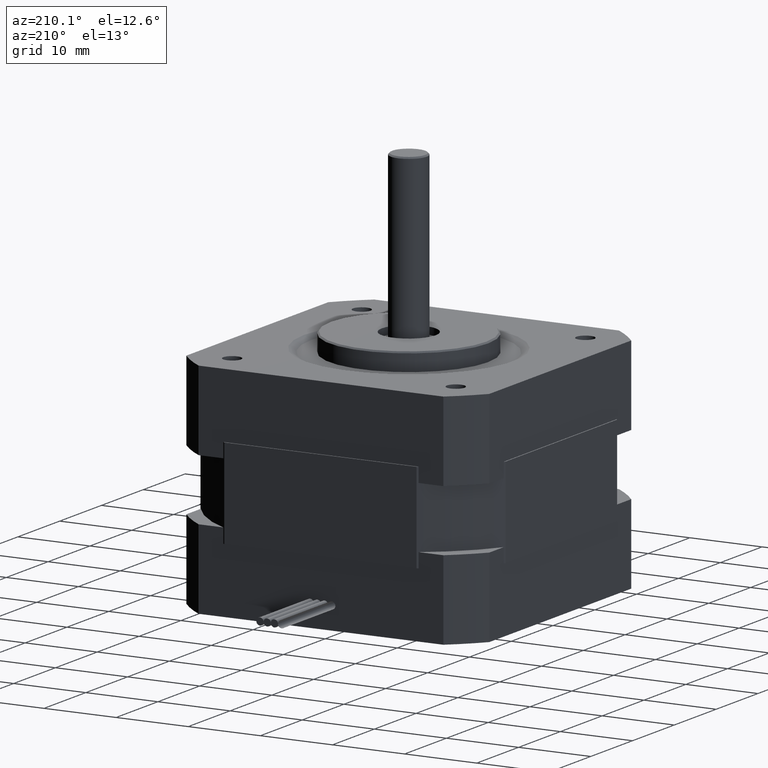
[diagram: clean part render]
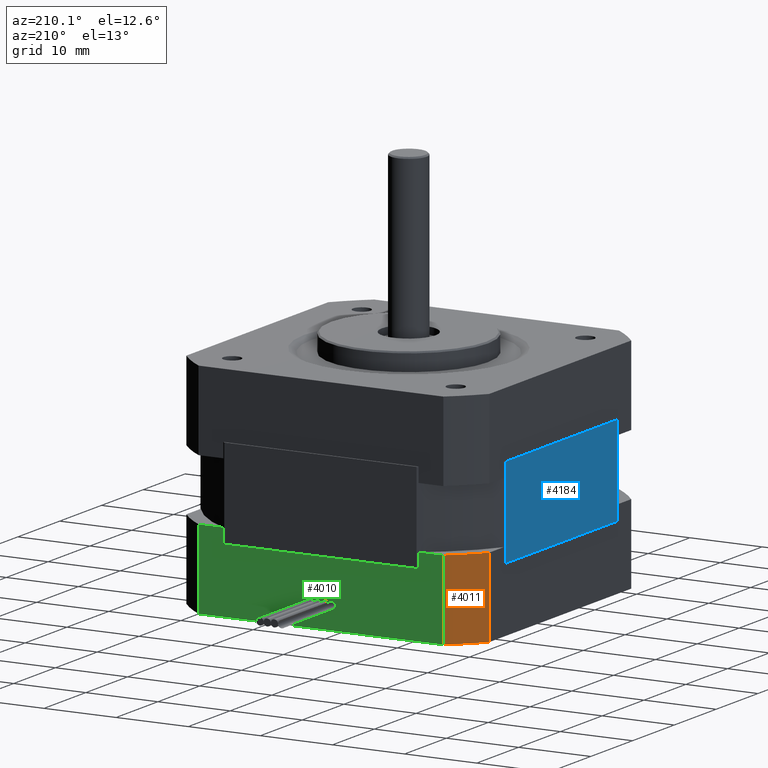
[diagram: same view with three faces highlighted in distinct colors, each labeled with its STEP entity id]
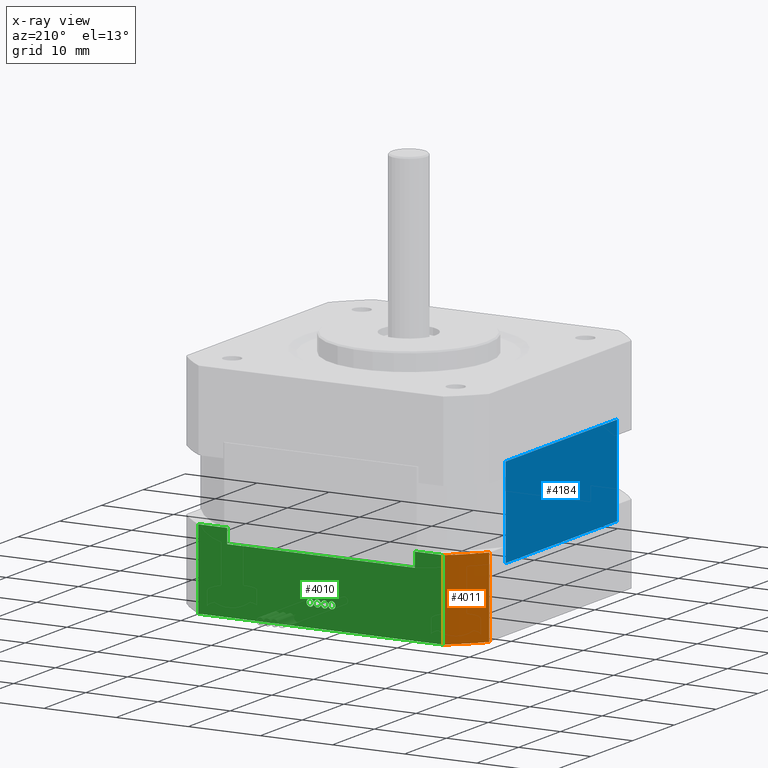
[diagram: x-ray of the same camera — body ghosted, the three highlighted faces saturated]
A machine part, auxiliary view with three faces highlighted in distinct colors.
The next image is the same camera in x-ray (body ghosted, the three faces saturated) — at least one of them is partly hidden behind the body in this view.
Their STEP definitions:

[orange] entity #4011 — the highlighted cylindrical surface (partial cylindrical patch) has radius 27 mm, axis along (-0, -0, -1).
#191=LINE('',#6297,#439);
#192=LINE('',#6299,#440);
#439=VECTOR('',#5076,11.);
#440=VECTOR('',#5079,11.);
#845=CYLINDRICAL_SURFACE('',#4348,27.);
#941=FACE_OUTER_BOUND('',#1240,.T.);
#1240=EDGE_LOOP('',(#2919,#2920,#2921,#2922));
#1503=CIRCLE('',#4312,27.);
#1506=CIRCLE('',#4318,27.);
#1774=VERTEX_POINT('',#6231);
#1775=VERTEX_POINT('',#6233);
#1780=VERTEX_POINT('',#6249);
#1781=VERTEX_POINT('',#6251);
#2196=EDGE_CURVE('',#1774,#1775,#1503,.T.);
#2205=EDGE_CURVE('',#1781,#1780,#1506,.T.);
#2222=EDGE_CURVE('',#1774,#1781,#191,.T.);
#2223=EDGE_CURVE('',#1775,#1780,#192,.T.);
#2919=ORIENTED_EDGE('',*,*,#2205,.T.);
#2920=ORIENTED_EDGE('',*,*,#2223,.F.);
#2921=ORIENTED_EDGE('',*,*,#2196,.F.);
#2922=ORIENTED_EDGE('',*,*,#2222,.T.);
#4011=ADVANCED_FACE('',(#941),#845,.T.);
#4312=AXIS2_PLACEMENT_3D('',#6234,#4996,#4997);
#4318=AXIS2_PLACEMENT_3D('',#6252,#5014,#5015);
#4348=AXIS2_PLACEMENT_3D('',#6298,#5077,#5078);
#4996=DIRECTION('center_axis',(9.034635156321E-16,9.20284061207292E-21,
1.));
#4997=DIRECTION('ref_axis',(0.777777777777778,-0.628539361054708,-7.02688061144075E-16));
#5014=DIRECTION('center_axis',(9.034635156321E-16,9.20284061207292E-21,
1.));
#5015=DIRECTION('ref_axis',(0.777777777777778,-0.628539361054708,-7.02688061144075E-16));
#5076=DIRECTION('',(-9.034635156321E-16,-9.20284061207292E-21,-1.));
#5077=DIRECTION('center_axis',(-9.034635156321E-16,-9.20284061207292E-21,
-1.));
#5078=DIRECTION('ref_axis',(0.777777777777778,-0.628539361054708,-7.02688061144075E-16));
#5079=DIRECTION('',(-9.034635156321E-16,-9.20284061207292E-21,-1.));
#6231=CARTESIAN_POINT('',(-16.9705627484772,21.,-13.5));
#6233=CARTESIAN_POINT('',(-21.,16.9705627484771,-13.5));
#6234=CARTESIAN_POINT('Origin',(-1.41415715095995E-14,8.02526056812936E-15,
-13.5));
#6249=CARTESIAN_POINT('',(-21.,16.9705627484771,-24.5));
#6251=CARTESIAN_POINT('',(-16.9705627484772,21.,-24.5));
#6252=CARTESIAN_POINT('Origin',(-2.40796701815525E-14,8.02515933688262E-15,
-24.5));
#6297=CARTESIAN_POINT('',(-16.9705627484772,21.,-13.5));
#6298=CARTESIAN_POINT('Origin',(-1.41415715095995E-14,8.02526056812936E-15,
-13.5));
#6299=CARTESIAN_POINT('',(-21.,16.9705627484771,-13.5));

[blue] entity #4184 — the highlighted planar face has unit normal (-1, -0, 0).
#344=LINE('',#7292,#592);
#350=LINE('',#7309,#598);
#351=LINE('',#7312,#599);
#352=LINE('',#7313,#600);
#592=VECTOR('',#5923,10.);
#598=VECTOR('',#5941,10.);
#599=VECTOR('',#5944,10.);
#600=VECTOR('',#5945,10.);
#733=PLANE('',#4701);
#1114=FACE_OUTER_BOUND('',#1448,.T.);
#1448=EDGE_LOOP('',(#3726,#3727,#3728,#3729));
#2064=VERTEX_POINT('',#7289);
#2065=VERTEX_POINT('',#7291);
#2070=VERTEX_POINT('',#7307);
#2071=VERTEX_POINT('',#7311);
#2616=EDGE_CURVE('',#2065,#2064,#344,.T.);
#2625=EDGE_CURVE('',#2070,#2064,#350,.T.);
#2626=EDGE_CURVE('',#2070,#2071,#351,.T.);
#2627=EDGE_CURVE('',#2071,#2065,#352,.T.);
#3726=ORIENTED_EDGE('',*,*,#2626,.T.);
#3727=ORIENTED_EDGE('',*,*,#2627,.T.);
#3728=ORIENTED_EDGE('',*,*,#2616,.T.);
#3729=ORIENTED_EDGE('',*,*,#2625,.F.);
#4184=ADVANCED_FACE('',(#1114),#733,.T.);
#4701=AXIS2_PLACEMENT_3D('',#7310,#5942,#5943);
#5923=DIRECTION('',(1.44375980718239E-15,-1.,-1.38711297625608E-30));
#5941=DIRECTION('',(-9.4368957093138E-16,2.46519032881584E-32,-1.));
#5942=DIRECTION('center_axis',(-1.,-1.44375980718239E-15,9.4368957093138E-16));
#5943=DIRECTION('ref_axis',(1.06581410364015E-15,0.,1.));
#5944=DIRECTION('',(-1.44375980718239E-15,1.,1.38711297625608E-30));
#5945=DIRECTION('',(-9.4368957093138E-16,2.46519032881584E-32,-1.));
#7289=CARTESIAN_POINT('',(-21.15,-13.3295723862396,-15.5));
#7291=CARTESIAN_POINT('',(-21.15,13.3295723862395,-15.5));
#7292=CARTESIAN_POINT('',(-21.15,-13.3295723862396,-15.5));
#7307=CARTESIAN_POINT('',(-21.15,-13.3295723862396,-3.00000000000005));
#7309=CARTESIAN_POINT('',(-21.15,-13.3295723862396,-9.25000000000005));
#7310=CARTESIAN_POINT('Origin',(-21.15,-13.3295723862396,-9.25000000000005));
#7311=CARTESIAN_POINT('',(-21.15,13.3295723862395,-3.00000000000005));
#7312=CARTESIAN_POINT('',(-21.15,-13.3295723862396,-3.00000000000005));
#7313=CARTESIAN_POINT('',(-21.15,13.3295723862395,-9.25000000000005));

[green] entity #4010 — the highlighted planar face has unit normal (-0, 1, -0).
#161=LINE('',#6178,#409);
#163=LINE('',#6184,#411);
#171=LINE('',#6199,#419);
#182=LINE('',#6232,#430);
#184=LINE('',#6239,#432);
#189=LINE('',#6254,#437);
#190=LINE('',#6295,#438);
#191=LINE('',#6297,#439);
#409=VECTOR('',#4948,2.);
#411=VECTOR('',#4952,2.);
#419=VECTOR('',#4964,26.);
#430=VECTOR('',#4995,3.97056274847713);
#432=VECTOR('',#5003,3.97056274847716);
#437=VECTOR('',#5016,33.9411254969543);
#438=VECTOR('',#5073,11.);
#439=VECTOR('',#5076,11.);
#645=PLANE('',#4347);
#780=FACE_BOUND('',#1239,.T.);
#940=FACE_OUTER_BOUND('',#1238,.T.);
#1238=EDGE_LOOP('',(#2905,#2906,#2907,#2908,#2909,#2910,#2911,#2912));
#1239=EDGE_LOOP('',(#2913,#2914,#2915,#2916,#2917,#2918));
#1485=CIRCLE('',#4277,0.5);
#1487=CIRCLE('',#4281,0.5);
#1490=CIRCLE('',#4284,0.5);
#1491=CIRCLE('',#4287,0.5);
#1494=CIRCLE('',#4291,0.5);
#1496=CIRCLE('',#4295,0.5);
#1741=VERTEX_POINT('',#6131);
#1743=VERTEX_POINT('',#6137);
#1745=VERTEX_POINT('',#6147);
#1752=VERTEX_POINT('',#6172);
#1754=VERTEX_POINT('',#6176);
#1755=VERTEX_POINT('',#6180);
#1757=VERTEX_POINT('',#6183);
#1774=VERTEX_POINT('',#6231);
#1776=VERTEX_POINT('',#6237);
#1781=VERTEX_POINT('',#6251);
#1782=VERTEX_POINT('',#6253);
#2145=EDGE_CURVE('',#1741,#1741,#1485,.T.);
#2147=EDGE_CURVE('',#1743,#1741,#1487,.T.);
#2152=EDGE_CURVE('',#1741,#1743,#1490,.T.);
#2153=EDGE_CURVE('',#1745,#1743,#1491,.T.);
#2157=EDGE_CURVE('',#1745,#1745,#1494,.T.);
#2160=EDGE_CURVE('',#1743,#1745,#1496,.T.);
#2168=EDGE_CURVE('',#1752,#1754,#161,.T.);
#2170=EDGE_CURVE('',#1757,#1755,#163,.T.);
#2178=EDGE_CURVE('',#1755,#1752,#171,.T.);
#2195=EDGE_CURVE('',#1757,#1774,#182,.T.);
#2199=EDGE_CURVE('',#1776,#1754,#184,.T.);
#2206=EDGE_CURVE('',#1782,#1781,#189,.T.);
#2221=EDGE_CURVE('',#1776,#1782,#190,.T.);
#2222=EDGE_CURVE('',#1774,#1781,#191,.T.);
#2905=ORIENTED_EDGE('',*,*,#2168,.T.);
#2906=ORIENTED_EDGE('',*,*,#2199,.F.);
#2907=ORIENTED_EDGE('',*,*,#2221,.T.);
#2908=ORIENTED_EDGE('',*,*,#2206,.T.);
#2909=ORIENTED_EDGE('',*,*,#2222,.F.);
#2910=ORIENTED_EDGE('',*,*,#2195,.F.);
#2911=ORIENTED_EDGE('',*,*,#2170,.T.);
#2912=ORIENTED_EDGE('',*,*,#2178,.T.);
#2913=ORIENTED_EDGE('',*,*,#2145,.T.);
#2914=ORIENTED_EDGE('',*,*,#2152,.T.);
#2915=ORIENTED_EDGE('',*,*,#2160,.T.);
#2916=ORIENTED_EDGE('',*,*,#2157,.T.);
#2917=ORIENTED_EDGE('',*,*,#2153,.T.);
#2918=ORIENTED_EDGE('',*,*,#2147,.T.);
#4010=ADVANCED_FACE('',(#940,#780),#645,.T.);
#4277=AXIS2_PLACEMENT_3D('',#6132,#4893,#4894);
#4281=AXIS2_PLACEMENT_3D('',#6138,#4901,#4902);
#4284=AXIS2_PLACEMENT_3D('',#6144,#4909,#4910);
#4287=AXIS2_PLACEMENT_3D('',#6148,#4915,#4916);
#4291=AXIS2_PLACEMENT_3D('',#6154,#4924,#4925);
#4295=AXIS2_PLACEMENT_3D('',#6159,#4933,#4934);
#4347=AXIS2_PLACEMENT_3D('',#6296,#5074,#5075);
#4893=DIRECTION('center_axis',(2.98562173248195E-16,-1.,9.20284061180318E-21));
#4894=DIRECTION('ref_axis',(1.,2.98562173248195E-16,-9.034635156321E-16));
#4901=DIRECTION('center_axis',(2.98562173248195E-16,-1.,9.20284061180318E-21));
#4902=DIRECTION('ref_axis',(1.,2.98562173248195E-16,-9.034635156321E-16));
#4909=DIRECTION('center_axis',(2.98562173248195E-16,-1.,9.20284061180318E-21));
#4910=DIRECTION('ref_axis',(1.,2.98562173248195E-16,-9.034635156321E-16));
#4915=DIRECTION('center_axis',(2.98562173248195E-16,-1.,9.20284061180318E-21));
#4916=DIRECTION('ref_axis',(1.,2.98562173248195E-16,-9.034635156321E-16));
#4924=DIRECTION('center_axis',(2.98562173248195E-16,-1.,9.20284061180318E-21));
#4925=DIRECTION('ref_axis',(1.,2.98562173248195E-16,-9.034635156321E-16));
#4933=DIRECTION('center_axis',(2.98562173248195E-16,-1.,9.20284061180318E-21));
#4934=DIRECTION('ref_axis',(1.,2.98562173248195E-16,-9.034635156321E-16));
#4948=DIRECTION('',(9.034635156321E-16,9.20284061207292E-21,1.));
#4952=DIRECTION('',(-9.034635156321E-16,-9.20284061207292E-21,-1.));
#4964=DIRECTION('',(1.,2.98562173248195E-16,-9.034635156321E-16));
#4995=DIRECTION('',(-1.,-2.98562173248195E-16,9.034635156321E-16));
#5003=DIRECTION('',(-1.,-2.98562173248195E-16,9.034635156321E-16));
#5016=DIRECTION('',(-1.,-2.98562173248195E-16,9.034635156321E-16));
#5073=DIRECTION('',(-9.034635156321E-16,-9.20284061207292E-21,-1.));
#5074=DIRECTION('center_axis',(-2.98562173248195E-16,1.,-9.20284061180318E-21));
#5075=DIRECTION('ref_axis',(1.06581410364015E-15,0.,1.));
#5076=DIRECTION('',(-9.034635156321E-16,-9.20284061207292E-21,-1.));
#6131=CARTESIAN_POINT('',(0.999999999999976,21.,-21.4));
#6132=CARTESIAN_POINT('Origin',(1.49999999999998,21.,-21.4));
#6137=CARTESIAN_POINT('',(-2.53282929213051E-14,21.,-21.4));
#6138=CARTESIAN_POINT('Origin',(0.499999999999975,21.,-21.4));
#6144=CARTESIAN_POINT('Origin',(0.499999999999975,21.,-21.4));
#6147=CARTESIAN_POINT('',(-1.00000000000003,21.,-21.4));
#6148=CARTESIAN_POINT('Origin',(-0.500000000000026,21.,-21.4));
#6154=CARTESIAN_POINT('Origin',(-1.50000000000003,21.,-21.4));
#6159=CARTESIAN_POINT('Origin',(-0.500000000000026,21.,-21.4));
#6172=CARTESIAN_POINT('',(13.,21.,-15.5));
#6176=CARTESIAN_POINT('',(13.,21.,-13.5));
#6178=CARTESIAN_POINT('',(13.,21.,-15.5));
#6180=CARTESIAN_POINT('',(-13.,21.,-15.5));
#6183=CARTESIAN_POINT('',(-13.,21.,-13.5));
#6184=CARTESIAN_POINT('',(-13.,21.,-13.5));
#6199=CARTESIAN_POINT('',(-13.,21.,-15.5));
#6231=CARTESIAN_POINT('',(-16.9705627484772,21.,-13.5));
#6232=CARTESIAN_POINT('',(-13.,21.,-13.5));
#6237=CARTESIAN_POINT('',(16.9705627484771,21.,-13.5));
#6239=CARTESIAN_POINT('',(16.9705627484771,21.,-13.5));
#6251=CARTESIAN_POINT('',(-16.9705627484772,21.,-24.5));
#6253=CARTESIAN_POINT('',(16.9705627484771,21.,-24.5));
#6254=CARTESIAN_POINT('',(16.9705627484771,21.,-24.5));
#6295=CARTESIAN_POINT('',(16.9705627484771,21.,-13.5));
#6296=CARTESIAN_POINT('Origin',(16.9705627484771,21.,-13.5));
#6297=CARTESIAN_POINT('',(-16.9705627484772,21.,-13.5));